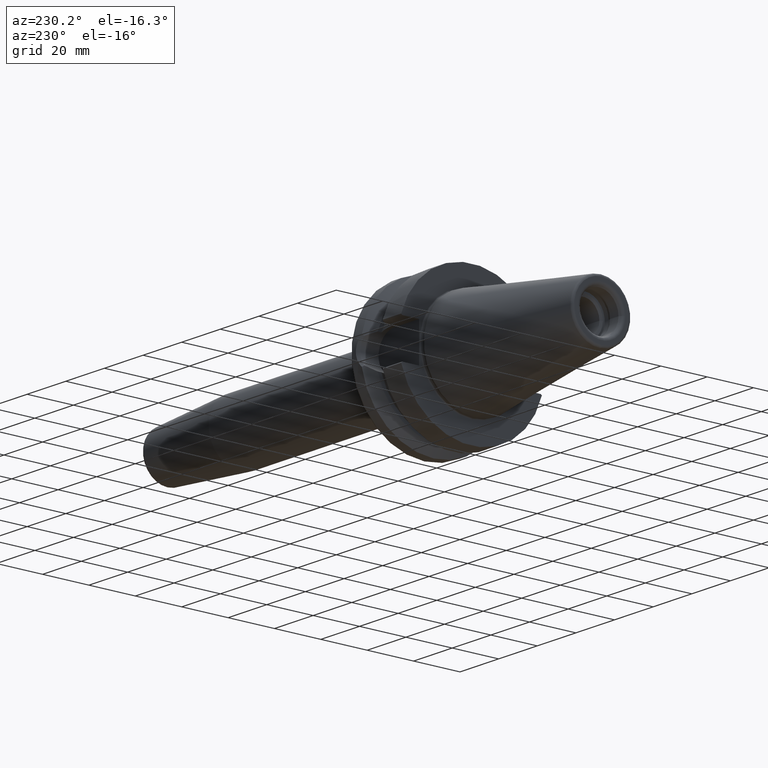
[diagram: clean part render]
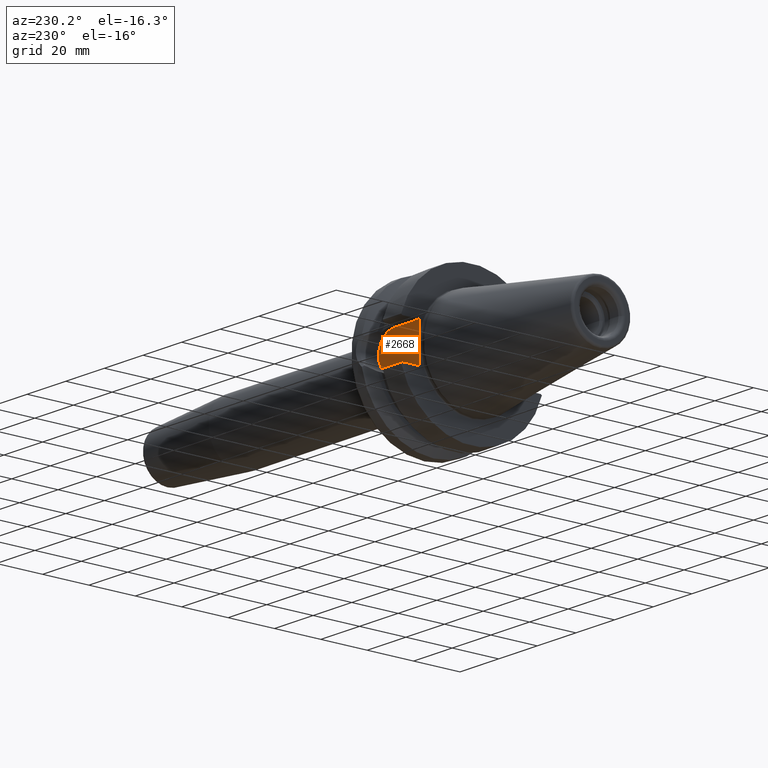
[diagram: same view with one face highlighted and labeled with its STEP entity id]
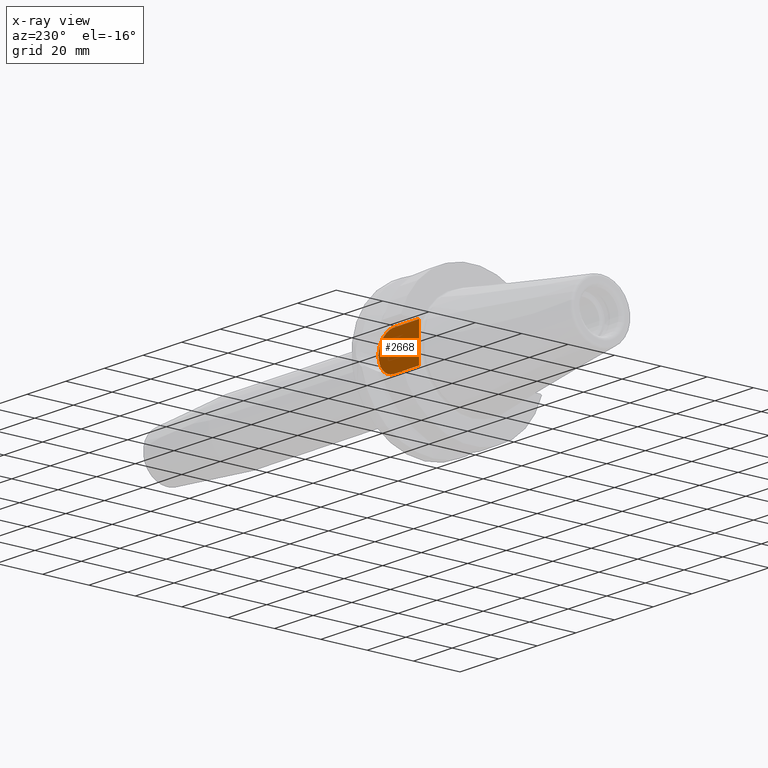
[diagram: x-ray of the same camera — body ghosted, the highlighted face saturated]
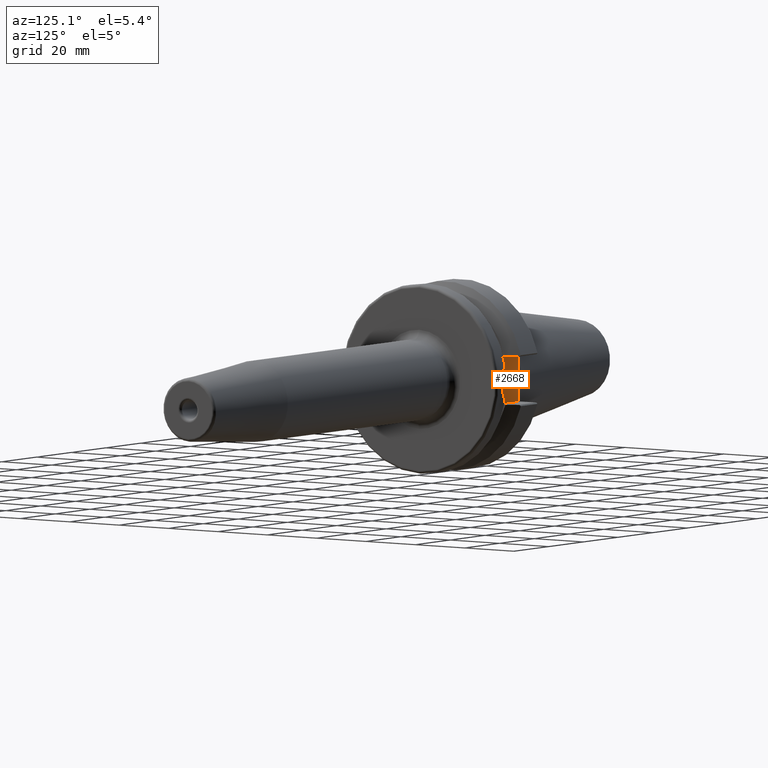
[diagram: same view with one face highlighted and labeled with its STEP entity id]
A machine part, auxiliary view. The second image highlights one B-rep face of the part: STEP entity #2668.
The next image is the same camera in x-ray: the body ghosted, the highlighted face saturated — about 0% of this face is hidden behind the body in this view.
A second angle (auxiliary view) of the same face is appended — the face is thin or edge-on in the first view.
In plain terms, the highlighted planar face has unit normal (0, 1, 0).
Its self-contained STEP definition (entity closure, byte-faithful):
#935=DIRECTION('',(0.E0,0.E0,-1.E0));
#936=VECTOR('',#935,1.61E1);
#937=CARTESIAN_POINT('',(2.E0,2.26E1,8.05E0));
#938=LINE('',#937,#936);
#1025=CARTESIAN_POINT('',(1.495E1,2.26E1,0.E0));
#1026=DIRECTION('',(0.E0,-1.E0,0.E0));
#1027=DIRECTION('',(0.E0,0.E0,-1.E0));
#1028=AXIS2_PLACEMENT_3D('',#1025,#1026,#1027);
#1030=DIRECTION('',(1.E0,0.E0,0.E0));
#1031=VECTOR('',#1030,1.295E1);
#1032=CARTESIAN_POINT('',(2.E0,2.26E1,8.05E0));
#1033=LINE('',#1032,#1031);
#1034=DIRECTION('',(-1.E0,0.E0,0.E0));
#1035=VECTOR('',#1034,1.295E1);
#1036=CARTESIAN_POINT('',(1.495E1,2.26E1,-8.05E0));
#1037=LINE('',#1036,#1035);
#1070=CARTESIAN_POINT('',(2.E0,2.26E1,8.05E0));
#1071=CARTESIAN_POINT('',(2.E0,2.26E1,-8.05E0));
#1072=VERTEX_POINT('',#1070);
#1073=VERTEX_POINT('',#1071);
#1090=CARTESIAN_POINT('',(1.495E1,2.26E1,-8.05E0));
#1091=CARTESIAN_POINT('',(1.495E1,2.26E1,8.05E0));
#1092=VERTEX_POINT('',#1090);
#1093=VERTEX_POINT('',#1091);
#2657=CARTESIAN_POINT('',(0.E0,2.26E1,0.E0));
#2658=DIRECTION('',(0.E0,1.E0,0.E0));
#2659=DIRECTION('',(1.E0,0.E0,0.E0));
#2660=AXIS2_PLACEMENT_3D('',#2657,#2658,#2659);
#2661=PLANE('',#2660);
#2662=ORIENTED_EDGE('',*,*,#2335,.T.);
#2663=ORIENTED_EDGE('',*,*,#2636,.F.);
#2664=ORIENTED_EDGE('',*,*,#2500,.T.);
#2665=ORIENTED_EDGE('',*,*,#2597,.F.);
#2666=EDGE_LOOP('',(#2662,#2663,#2664,#2665));
#2667=FACE_OUTER_BOUND('',#2666,.F.);
#2668=ADVANCED_FACE('',(#2667),#2661,.T.);
#1029=CIRCLE('',#1028,8.05E0);
#2335=EDGE_CURVE('',#1092,#1093,#1029,.T.);
#2500=EDGE_CURVE('',#1072,#1073,#938,.T.);
#2597=EDGE_CURVE('',#1092,#1073,#1037,.T.);
#2636=EDGE_CURVE('',#1072,#1093,#1033,.T.);